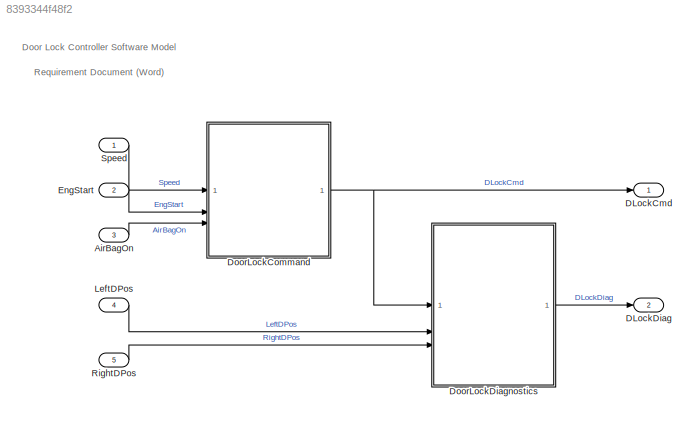
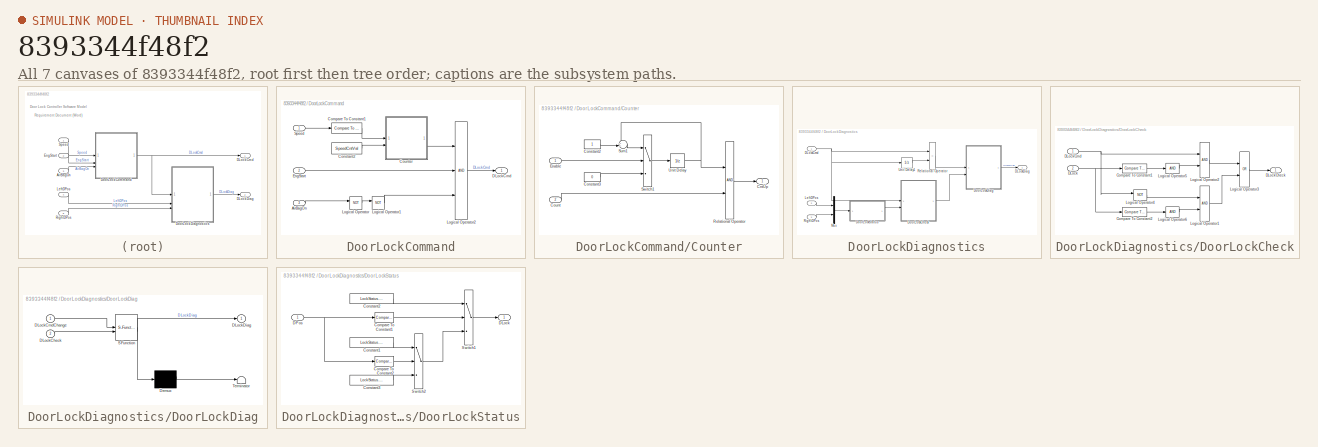
[diagram: thumbnail index - all 7 canvases of the model, root first then tree order]
MODEL slx_8393344f48f2
KIND model
CONFIG AbsTol = auto
CONFIG EnableMultiTasking = on
CONFIG FixedStep = 0.1
CONFIG MaxStep = auto
CONFIG MinStep = auto
CONFIG RelTol = 1e-3
CONFIG SampleTimeConstraint = Unconstrained
CONFIG SolverName = FixedStepDiscrete
CONFIG StartTime = 0.0
CONFIG StopTime = 10.0
BLOCK [Inport] AirBagOn
  OutDataTypeStr = boolean
  Port = 3
  PortDimensions = 1
  SampleTime = 0.1
BLOCK [Outport] DLockCmd
  VectorParamsAs1DForOutWhenUnconnected = off
BLOCK [Outport] DLockDiag
  Port = 2
  VectorParamsAs1DForOutWhenUnconnected = off
BLOCK [SubSystem] DoorLockCommand
BLOCK [Inport] DoorLockCommand/AirBagOn
  Port = 3
BLOCK [Reference] DoorLockCommand/Compare To Constant1  REF=simulink/Logic and Bit
Operations/Compare
To Constant
  SourceBlock = simulink/Logic and Bit\nOperations/Compare\nTo Constant
  SourceType = Compare To Constant
BLOCK [Constant] DoorLockCommand/Constant2
  AttributesFormatString = DataType = %<OutDataTypeStr>
  OutDataTypeStr = uint8
  Value = SpeedCntVal
BLOCK [SubSystem] DoorLockCommand/Counter
BLOCK [Outport] DoorLockCommand/Counter/CntUp
  VectorParamsAs1DForOutWhenUnconnected = off
BLOCK [Constant] DoorLockCommand/Counter/Constant2
  AttributesFormatString = DataType = %<OutDataTypeStr>
  OutDataTypeStr = uint8
BLOCK [Constant] DoorLockCommand/Counter/Constant3
  AttributesFormatString = DataType = %<OutDataTypeStr>
  OutDataTypeStr = uint8
  Value = 0
BLOCK [Inport] DoorLockCommand/Counter/Count
  Port = 2
BLOCK [Inport] DoorLockCommand/Counter/Enable
BLOCK [RelationalOperator] DoorLockCommand/Counter/Relational Operator
  InputSameDT = off
  OutDataTypeStr = boolean
BLOCK [Sum] DoorLockCommand/Counter/Sum1
  AttributesFormatString = SatInt = %<SaturateOnIntegerOverflow>
  Inputs = ++|
  RndMeth = Simplest
  SaturateOnIntegerOverflow = on
BLOCK [Switch] DoorLockCommand/Counter/Switch1
  Criteria = u2 ~= 0
  InputSameDT = off
  RndMeth = Simplest
  SaturateOnIntegerOverflow = off
BLOCK [UnitDelay] DoorLockCommand/Counter/Unit Delay
  AttributesFormatString = InitialValue = %<InitialCondition>\nState = %<StateName>
  HasFrameUpgradeWarning = on
  SampleTime = -1
  StateMustResolveToSignalObject = on
  StateName = SpeedCnt
BLOCK [Outport] DoorLockCommand/DLockCmd
  VectorParamsAs1DForOutWhenUnconnected = off
BLOCK [Inport] DoorLockCommand/EngStart
  Port = 2
BLOCK [Logic] DoorLockCommand/Logical Operator
  AllPortsSameDT = off
  Operator = NOT
  OutDataTypeStr = boolean
BLOCK [Logic] DoorLockCommand/Logical Operator1
  AllPortsSameDT = off
  Operator = NOT
  OutDataTypeStr = boolean
BLOCK [Logic] DoorLockCommand/Logical Operator2
  AllPortsSameDT = off
  Inputs = 3
  OutDataTypeStr = boolean
BLOCK [Inport] DoorLockCommand/Speed
BLOCK [SubSystem] DoorLockDiagnostics
BLOCK [Inport] DoorLockDiagnostics/DLockCmd
BLOCK [Outport] DoorLockDiagnostics/DLockDiag
  VectorParamsAs1DForOutWhenUnconnected = off
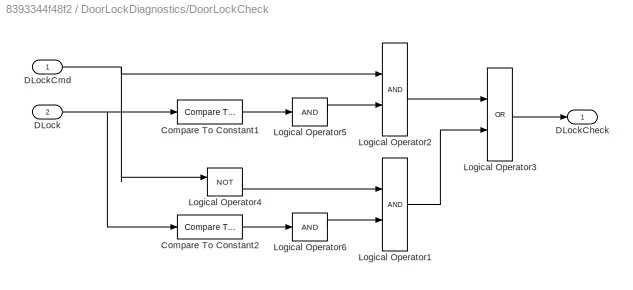
BLOCK [SubSystem] DoorLockDiagnostics/DoorLockCheck
BLOCK [Reference] DoorLockDiagnostics/DoorLockCheck/Compare To Constant1  REF=simulink/Logic and Bit
Operations/Compare
To Constant
  SourceBlock = simulink/Logic and Bit\nOperations/Compare\nTo Constant
  SourceType = Compare To Constant
BLOCK [Reference] DoorLockDiagnostics/DoorLockCheck/Compare To Constant2  REF=simulink/Logic and Bit
Operations/Compare
To Constant
  SourceBlock = simulink/Logic and Bit\nOperations/Compare\nTo Constant
  SourceType = Compare To Constant
BLOCK [Inport] DoorLockDiagnostics/DoorLockCheck/DLock
  Port = 2
BLOCK [Outport] DoorLockDiagnostics/DoorLockCheck/DLockCheck
  VectorParamsAs1DForOutWhenUnconnected = off
BLOCK [Inport] DoorLockDiagnostics/DoorLockCheck/DLockCmd
BLOCK [Logic] DoorLockDiagnostics/DoorLockCheck/Logical Operator1
  AllPortsSameDT = off
  OutDataTypeStr = boolean
BLOCK [Logic] DoorLockDiagnostics/DoorLockCheck/Logical Operator2
  AllPortsSameDT = off
  OutDataTypeStr = boolean
BLOCK [Logic] DoorLockDiagnostics/DoorLockCheck/Logical Operator3
  AllPortsSameDT = off
  Operator = OR
  OutDataTypeStr = boolean
BLOCK [Logic] DoorLockDiagnostics/DoorLockCheck/Logical Operator4
  AllPortsSameDT = off
  Operator = NOT
  OutDataTypeStr = boolean
BLOCK [Logic] DoorLockDiagnostics/DoorLockCheck/Logical Operator5
  AllPortsSameDT = off
  Inputs = 1
  OutDataTypeStr = boolean
BLOCK [Logic] DoorLockDiagnostics/DoorLockCheck/Logical Operator6
  AllPortsSameDT = off
  Inputs = 1
  OutDataTypeStr = boolean
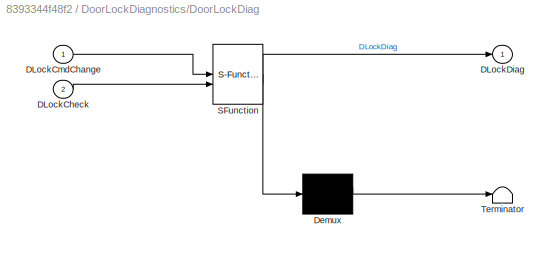
BLOCK [SubSystem] DoorLockDiagnostics/DoorLockDiag
  ErrorFcn = Stateflow.Translate.translate
  PermitHierarchicalResolution = ExplicitOnly
  SFBlockType = Chart
  TreatAsAtomicUnit = on
BLOCK [Demux] DoorLockDiagnostics/DoorLockDiag/ Demux 
  Outputs = 1
BLOCK [S-Function] DoorLockDiagnostics/DoorLockDiag/ SFunction 
  EnableBusSupport = off
  FunctionName = sf_sfun
  Parameters = DiagCntVal
  PortCounts = [2 2]
  SFcnIsStateOwnerBlock = off
  SFunctionDeploymentMode = off
  Tag = Stateflow S-Function 3
BLOCK [Terminator] DoorLockDiagnostics/DoorLockDiag/ Terminator 
BLOCK [Inport] DoorLockDiagnostics/DoorLockDiag/DLockCheck
  Port = 2
BLOCK [Inport] DoorLockDiagnostics/DoorLockDiag/DLockCmdChange
BLOCK [Outport] DoorLockDiagnostics/DoorLockDiag/DLockDiag
  VectorParamsAs1DForOutWhenUnconnected = off
BLOCK [SubSystem] DoorLockDiagnostics/DoorLockStatus
BLOCK [Reference] DoorLockDiagnostics/DoorLockStatus/Compare To Constant1  REF=simulink/Logic and Bit
Operations/Compare
To Constant
  SourceBlock = simulink/Logic and Bit\nOperations/Compare\nTo Constant
  SourceType = Compare To Constant
BLOCK [Reference] DoorLockDiagnostics/DoorLockStatus/Compare To Constant2  REF=simulink/Logic and Bit
Operations/Compare
To Constant
  SourceBlock = simulink/Logic and Bit\nOperations/Compare\nTo Constant
  SourceType = Compare To Constant
BLOCK [Constant] DoorLockDiagnostics/DoorLockStatus/Constant1
  AttributesFormatString = DataType = %<OutDataTypeStr>
  OutDataTypeStr = Enum: LockStatus
  Value = LockStatus.UNLOCK
BLOCK [Constant] DoorLockDiagnostics/DoorLockStatus/Constant2
  AttributesFormatString = DataType = %<OutDataTypeStr>
  OutDataTypeStr = Enum: LockStatus
  Value = LockStatus.LOCK
BLOCK [Constant] DoorLockDiagnostics/DoorLockStatus/Constant3
  AttributesFormatString = DataType = %<OutDataTypeStr>
  OutDataTypeStr = Enum: LockStatus
  Value = LockStatus.NEUTRAL
BLOCK [Outport] DoorLockDiagnostics/DoorLockStatus/DLock
  VectorParamsAs1DForOutWhenUnconnected = off
BLOCK [Inport] DoorLockDiagnostics/DoorLockStatus/DPos
BLOCK [Switch] DoorLockDiagnostics/DoorLockStatus/Switch1
  Criteria = u2 ~= 0
  InputSameDT = off
  RndMeth = Simplest
  SaturateOnIntegerOverflow = off
BLOCK [Switch] DoorLockDiagnostics/DoorLockStatus/Switch2
  Criteria = u2 ~= 0
  InputSameDT = off
  RndMeth = Simplest
  SaturateOnIntegerOverflow = off
BLOCK [Inport] DoorLockDiagnostics/LeftDPos
  Port = 2
BLOCK [Mux] DoorLockDiagnostics/Mux
  DisplayOption = bar
  Inputs = 2
BLOCK [RelationalOperator] DoorLockDiagnostics/Relational Operator
  InputSameDT = off
  Operator = ~=
  OutDataTypeStr = boolean
BLOCK [Inport] DoorLockDiagnostics/RightDPos
  Port = 3
BLOCK [UnitDelay] DoorLockDiagnostics/Unit Delay1
  AttributesFormatString = InitialValue = %<InitialCondition>\nState = %<StateName>
  HasFrameUpgradeWarning = on
  SampleTime = -1
  StateMustResolveToSignalObject = on
  StateName = DLockCmd_prev
BLOCK [Inport] EngStart
  OutDataTypeStr = boolean
  Port = 2
  PortDimensions = 1
  SampleTime = 0.1
BLOCK [Inport] LeftDPos
  OutDataTypeStr = single
  Port = 4
  PortDimensions = 1
  SampleTime = 0.1
BLOCK [Inport] RightDPos
  OutDataTypeStr = single
  Port = 5
  PortDimensions = 1
  SampleTime = 0.1
BLOCK [Inport] Speed
  OutDataTypeStr = single
  PortDimensions = 1
  SampleTime = 0.1
ANNOTATION (root): Requirement Document (Word)
ANNOTATION (root): Door Lock Controller Software Model
LINE AirBagOn:1 -> DoorLockCommand:3
LINE DoorLockCommand/AirBagOn:1 -> DoorLockCommand/Logical Operator:1
LINE DoorLockCommand/Compare To Constant1:1 -> DoorLockCommand/Counter:1
LINE DoorLockCommand/Constant2:1 -> DoorLockCommand/Counter:2
LINE DoorLockCommand/Counter/Constant2:1 -> DoorLockCommand/Counter/Sum1:2
LINE DoorLockCommand/Counter/Constant3:1 -> DoorLockCommand/Counter/Switch1:3
LINE DoorLockCommand/Counter/Count:1 -> DoorLockCommand/Counter/Relational Operator:2
LINE DoorLockCommand/Counter/Enable:1 -> DoorLockCommand/Counter/Switch1:2
LINE DoorLockCommand/Counter/Relational Operator:1 -> DoorLockCommand/Counter/CntUp:1
LINE DoorLockCommand/Counter/Sum1:1 -> DoorLockCommand/Counter/Switch1:1
LINE DoorLockCommand/Counter/Switch1:1 -> DoorLockCommand/Counter/Unit Delay:1
NET DoorLockCommand/Counter/Unit Delay:1 -> DoorLockCommand/Counter/Relational Operator:1, DoorLockCommand/Counter/Sum1:1
LINE DoorLockCommand/Counter:1 -> DoorLockCommand/Logical Operator2:1
LINE DoorLockCommand/EngStart:1 -> DoorLockCommand/Logical Operator2:2
LINE DoorLockCommand/Logical Operator1:1 -> DoorLockCommand/Logical Operator2:3
LINE DoorLockCommand/Logical Operator2:1 -> DoorLockCommand/DLockCmd:1
LINE DoorLockCommand/Logical Operator:1 -> DoorLockCommand/Logical Operator1:1
LINE DoorLockCommand/Speed:1 -> DoorLockCommand/Compare To Constant1:1
NET DoorLockCommand:1 -> DLockCmd:1, DoorLockDiagnostics:1
NET DoorLockDiagnostics/DLockCmd:1 -> DoorLockDiagnostics/DoorLockCheck:1, DoorLockDiagnostics/Relational Operator:1, DoorLockDiagnostics/Unit Delay1:1
LINE DoorLockDiagnostics/DoorLockCheck/Compare To Constant1:1 -> DoorLockDiagnostics/DoorLockCheck/Logical Operator5:1
LINE DoorLockDiagnostics/DoorLockCheck/Compare To Constant2:1 -> DoorLockDiagnostics/DoorLockCheck/Logical Operator6:1
NET DoorLockDiagnostics/DoorLockCheck/DLock:1 -> DoorLockDiagnostics/DoorLockCheck/Compare To Constant1:1, DoorLockDiagnostics/DoorLockCheck/Compare To Constant2:1
NET DoorLockDiagnostics/DoorLockCheck/DLockCmd:1 -> DoorLockDiagnostics/DoorLockCheck/Logical Operator2:1, DoorLockDiagnostics/DoorLockCheck/Logical Operator4:1
LINE DoorLockDiagnostics/DoorLockCheck/Logical Operator1:1 -> DoorLockDiagnostics/DoorLockCheck/Logical Operator3:2
LINE DoorLockDiagnostics/DoorLockCheck/Logical Operator2:1 -> DoorLockDiagnostics/DoorLockCheck/Logical Operator3:1
LINE DoorLockDiagnostics/DoorLockCheck/Logical Operator3:1 -> DoorLockDiagnostics/DoorLockCheck/DLockCheck:1
LINE DoorLockDiagnostics/DoorLockCheck/Logical Operator4:1 -> DoorLockDiagnostics/DoorLockCheck/Logical Operator1:1
LINE DoorLockDiagnostics/DoorLockCheck/Logical Operator5:1 -> DoorLockDiagnostics/DoorLockCheck/Logical Operator2:2
LINE DoorLockDiagnostics/DoorLockCheck/Logical Operator6:1 -> DoorLockDiagnostics/DoorLockCheck/Logical Operator1:2
LINE DoorLockDiagnostics/DoorLockCheck:1 -> DoorLockDiagnostics/DoorLockDiag:2
LINE DoorLockDiagnostics/DoorLockDiag:1 -> DoorLockDiagnostics/DLockDiag:1
LINE DoorLockDiagnostics/DoorLockStatus/Compare To Constant1:1 -> DoorLockDiagnostics/DoorLockStatus/Switch1:2
LINE DoorLockDiagnostics/DoorLockStatus/Compare To Constant2:1 -> DoorLockDiagnostics/DoorLockStatus/Switch2:2
LINE DoorLockDiagnostics/DoorLockStatus/Constant1:1 -> DoorLockDiagnostics/DoorLockStatus/Switch2:1
LINE DoorLockDiagnostics/DoorLockStatus/Constant2:1 -> DoorLockDiagnostics/DoorLockStatus/Switch1:1
LINE DoorLockDiagnostics/DoorLockStatus/Constant3:1 -> DoorLockDiagnostics/DoorLockStatus/Switch2:3
NET DoorLockDiagnostics/DoorLockStatus/DPos:1 -> DoorLockDiagnostics/DoorLockStatus/Compare To Constant1:1, DoorLockDiagnostics/DoorLockStatus/Compare To Constant2:1
LINE DoorLockDiagnostics/DoorLockStatus/Switch1:1 -> DoorLockDiagnostics/DoorLockStatus/DLock:1
LINE DoorLockDiagnostics/DoorLockStatus/Switch2:1 -> DoorLockDiagnostics/DoorLockStatus/Switch1:3
LINE DoorLockDiagnostics/DoorLockStatus:1 -> DoorLockDiagnostics/DoorLockCheck:2
LINE DoorLockDiagnostics/LeftDPos:1 -> DoorLockDiagnostics/Mux:1
LINE DoorLockDiagnostics/Mux:1 -> DoorLockDiagnostics/DoorLockStatus:1
LINE DoorLockDiagnostics/Relational Operator:1 -> DoorLockDiagnostics/DoorLockDiag:1
LINE DoorLockDiagnostics/RightDPos:1 -> DoorLockDiagnostics/Mux:2
LINE DoorLockDiagnostics/Unit Delay1:1 -> DoorLockDiagnostics/Relational Operator:2
LINE DoorLockDiagnostics:1 -> DLockDiag:1
LINE EngStart:1 -> DoorLockCommand:2
LINE LeftDPos:1 -> DoorLockDiagnostics:2
LINE RightDPos:1 -> DoorLockDiagnostics:3
LINE Speed:1 -> DoorLockCommand:1
note: NET lines group one-source signal fan-out (src -> all destinations, sorted); 1:1 wires keep LINE
CHART DoorLockDiagnostics/DoorLockDiag states=3 transitions=6
  STATE_LABEL 'NORMAL\nentry:\n  DLockDiag = NORMAL;'
  STATE_LABEL 'WARNING\nentry:\n  DiagCnt = 1;\nduring:\n  DiagCnt++;'
  STATE_LABEL 'FAIL\nentry:\n  DLockDiag = FAIL;'
CHART  states=0 transitions=0
